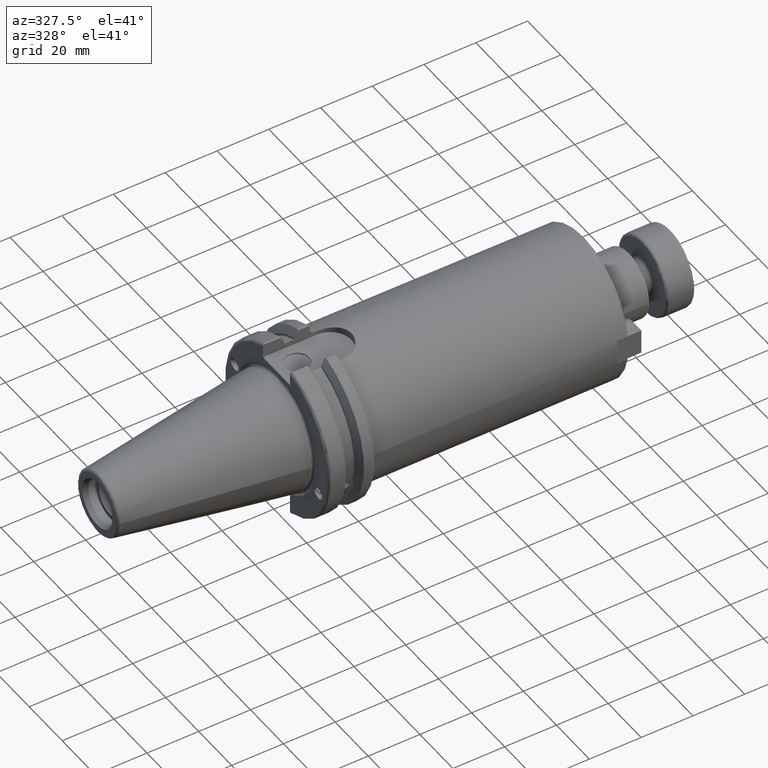
[diagram: clean part render]
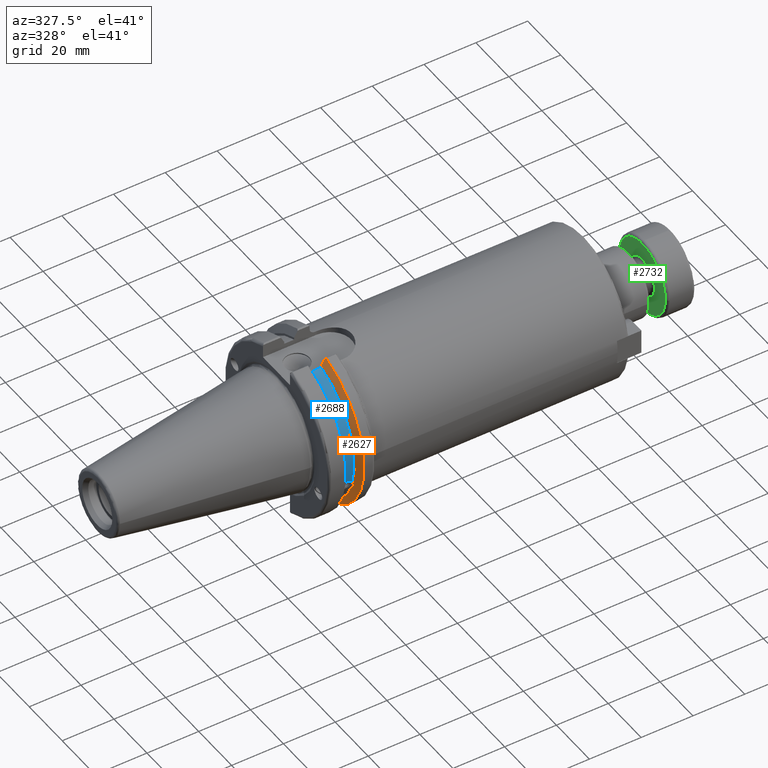
[diagram: same view with three faces highlighted in distinct colors, each labeled with its STEP entity id]
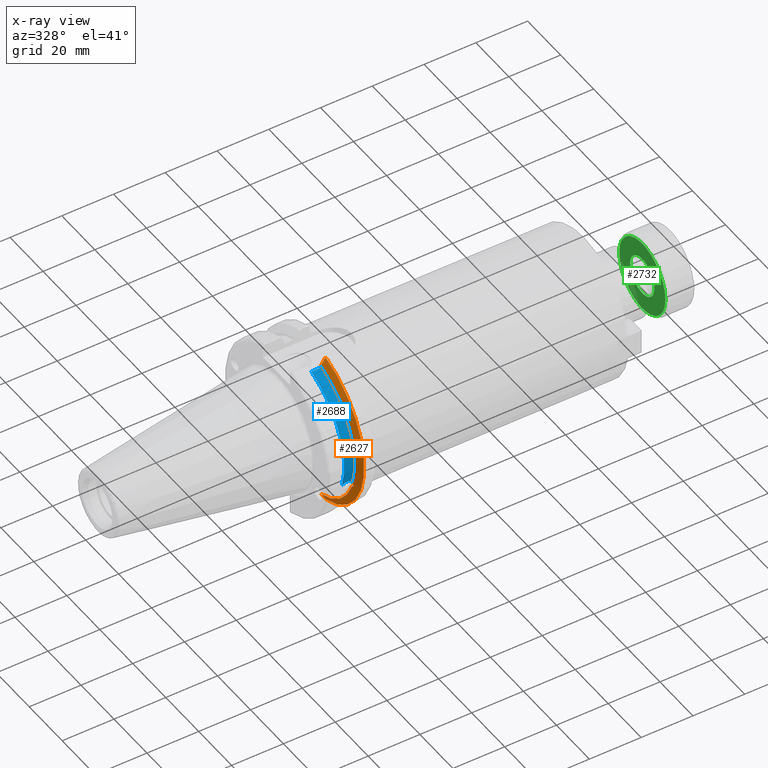
[diagram: x-ray of the same camera — body ghosted, the three highlighted faces saturated]
A machine part, auxiliary view with three faces highlighted in distinct colors.
The next image is the same camera in x-ray (body ghosted, the three faces saturated) — at least one of them is partly hidden behind the body in this view.
Their STEP definitions:

[orange] entity #2627 — the highlighted conical surface has half-angle 60 deg.
#53=(
BOUNDED_CURVE()
B_SPLINE_CURVE(2,(#4510,#4511,#4512),.UNSPECIFIED.,.F.,.F.)
B_SPLINE_CURVE_WITH_KNOTS((3,3),(0.,0.276549142795512),.UNSPECIFIED.)
CURVE()
GEOMETRIC_REPRESENTATION_ITEM()
RATIONAL_B_SPLINE_CURVE((1.,1.00095203904184,1.00031614445102))
REPRESENTATION_ITEM('')
);
#54=(
BOUNDED_CURVE()
B_SPLINE_CURVE(2,(#4514,#4515,#4516),.UNSPECIFIED.,.F.,.F.)
B_SPLINE_CURVE_WITH_KNOTS((3,3),(0.,0.0639048713675663),.UNSPECIFIED.)
CURVE()
GEOMETRIC_REPRESENTATION_ITEM()
RATIONAL_B_SPLINE_CURVE((1.,1.00028444218286,1.00047644010578))
REPRESENTATION_ITEM('')
);
#55=(
BOUNDED_CURVE()
B_SPLINE_CURVE(2,(#4520,#4521,#4522),.UNSPECIFIED.,.F.,.F.)
B_SPLINE_CURVE_WITH_KNOTS((3,3),(0.329353533631206,0.393258405001023),
 .UNSPECIFIED.)
CURVE()
GEOMETRIC_REPRESENTATION_ITEM()
RATIONAL_B_SPLINE_CURVE((1.00047644010579,1.00028444218287,1.))
REPRESENTATION_ITEM('')
);
#56=(
BOUNDED_CURVE()
B_SPLINE_CURVE(2,(#4524,#4525,#4526),.UNSPECIFIED.,.F.,.F.)
B_SPLINE_CURVE_WITH_KNOTS((3,3),(0.0550586467393779,0.331607789535852),
 .UNSPECIFIED.)
CURVE()
GEOMETRIC_REPRESENTATION_ITEM()
RATIONAL_B_SPLINE_CURVE((1.00031614444922,1.00095203903643,1.))
REPRESENTATION_ITEM('')
);
#120=CONICAL_SURFACE('',#2945,30.3546886482472,1.0471975511966);
#277=FACE_OUTER_BOUND('',#442,.T.);
#442=EDGE_LOOP('',(#1977,#1978,#1979,#1980,#1981,#1982,#1983,#1984,#1985));
#618=CIRCLE('',#2946,28.9593772964944);
#619=CIRCLE('',#2947,31.75);
#620=CIRCLE('',#2948,28.9593772964944);
#1061=B_SPLINE_CURVE_WITH_KNOTS('',3,(#4418,#4419,#4420,#4421,#4422,#4423,
#4424,#4425),.UNSPECIFIED.,.F.,.F.,(4,2,2,4),(0.451995700189025,0.464547828547663,
0.504528771685168,0.544509714822673),.UNSPECIFIED.);
#1065=B_SPLINE_CURVE_WITH_KNOTS('',3,(#4480,#4481,#4482,#4483,#4484,#4485,
#4486,#4487),.UNSPECIFIED.,.F.,.F.,(4,2,2,4),(0.544509714822673,0.584490657960178,
0.624471601097683,0.637023729456322),.UNSPECIFIED.);
#1168=VERTEX_POINT('',#4415);
#1169=VERTEX_POINT('',#4417);
#1176=VERTEX_POINT('',#4478);
#1182=VERTEX_POINT('',#4507);
#1183=VERTEX_POINT('',#4509);
#1184=VERTEX_POINT('',#4513);
#1185=VERTEX_POINT('',#4517);
#1186=VERTEX_POINT('',#4519);
#1187=VERTEX_POINT('',#4523);
#1465=EDGE_CURVE('',#1169,#1168,#1061,.T.);
#1473=EDGE_CURVE('',#1168,#1176,#1065,.T.);
#1482=EDGE_CURVE('',#1176,#1182,#618,.T.);
#1483=EDGE_CURVE('',#1182,#1183,#53,.T.);
#1484=EDGE_CURVE('',#1184,#1183,#54,.T.);
#1485=EDGE_CURVE('',#1185,#1184,#619,.T.);
#1486=EDGE_CURVE('',#1186,#1185,#55,.T.);
#1487=EDGE_CURVE('',#1186,#1187,#56,.T.);
#1488=EDGE_CURVE('',#1187,#1169,#620,.T.);
#1977=ORIENTED_EDGE('',*,*,#1465,.T.);
#1978=ORIENTED_EDGE('',*,*,#1473,.T.);
#1979=ORIENTED_EDGE('',*,*,#1482,.T.);
#1980=ORIENTED_EDGE('',*,*,#1483,.T.);
#1981=ORIENTED_EDGE('',*,*,#1484,.F.);
#1982=ORIENTED_EDGE('',*,*,#1485,.F.);
#1983=ORIENTED_EDGE('',*,*,#1486,.F.);
#1984=ORIENTED_EDGE('',*,*,#1487,.T.);
#1985=ORIENTED_EDGE('',*,*,#1488,.T.);
#2627=ADVANCED_FACE('',(#277),#120,.T.);
#2945=AXIS2_PLACEMENT_3D('',#4506,#3431,#3432);
#2946=AXIS2_PLACEMENT_3D('',#4508,#3433,#3434);
#2947=AXIS2_PLACEMENT_3D('',#4518,#3435,#3436);
#2948=AXIS2_PLACEMENT_3D('',#4527,#3437,#3438);
#3431=DIRECTION('center_axis',(1.,0.,0.));
#3432=DIRECTION('ref_axis',(0.,-1.,-1.22464679914735E-16));
#3433=DIRECTION('center_axis',(1.,0.,0.));
#3434=DIRECTION('ref_axis',(0.,0.,-1.));
#3435=DIRECTION('center_axis',(1.,0.,0.));
#3436=DIRECTION('ref_axis',(0.,0.,-1.));
#3437=DIRECTION('center_axis',(1.,0.,0.));
#3438=DIRECTION('ref_axis',(0.,0.,-1.));
#4415=CARTESIAN_POINT('',(13.2341,-27.51401829017,-10.0142836826778));
#4417=CARTESIAN_POINT('',(13.0491,-27.4956274489925,-9.09043478536246));
#4418=CARTESIAN_POINT('Ctrl Pts',(13.0491,-27.4956274489925,-9.09043478536246));
#4419=CARTESIAN_POINT('Ctrl Pts',(13.0632204071996,-27.5087667900418,-9.12860597076218));
#4420=CARTESIAN_POINT('Ctrl Pts',(13.0766929817857,-27.5206055003513,-9.16696618806878));
#4421=CARTESIAN_POINT('Ctrl Pts',(13.130081441159,-27.5642934663232,-9.32791534028656));
#4422=CARTESIAN_POINT('Ctrl Pts',(13.1682197084175,-27.5867382255984,-9.46717946402648));
#4423=CARTESIAN_POINT('Ctrl Pts',(13.2204106446058,-27.5847569104122,-9.74771639360671));
#4424=CARTESIAN_POINT('Ctrl Pts',(13.2341,-27.559599249844,-9.8890510252165));
#4425=CARTESIAN_POINT('Ctrl Pts',(13.2341,-27.51401829017,-10.0142836826778));
#4478=CARTESIAN_POINT('',(13.0491,-26.9060914640648,-10.7101715919071));
#4480=CARTESIAN_POINT('Ctrl Pts',(13.2341,-27.51401829017,-10.0142836826778));
#4481=CARTESIAN_POINT('Ctrl Pts',(13.2341,-27.4684373304961,-10.139516340139));
#4482=CARTESIAN_POINT('Ctrl Pts',(13.2204106446058,-27.3968610665578,-10.2639559818059));
#4483=CARTESIAN_POINT('Ctrl Pts',(13.1682197084175,-27.2180531796526,-10.4801333026531));
#4484=CARTESIAN_POINT('Ctrl Pts',(13.130081441159,-27.1113422433189,-10.5723885976054));
#4485=CARTESIAN_POINT('Ctrl Pts',(13.0766929817857,-26.9744191989197,-10.6676007180673));
#4486=CARTESIAN_POINT('Ctrl Pts',(13.0632204071996,-26.9406927482839,-10.6893765730703));
#4487=CARTESIAN_POINT('Ctrl Pts',(13.0491,-26.9060914640648,-10.7101715919071));
#4506=CARTESIAN_POINT('Origin',(13.8546833845378,0.,0.));
#4507=CARTESIAN_POINT('',(13.0491,-8.19,-27.7771386827498));
#4508=CARTESIAN_POINT('Origin',(13.0491,0.,0.));
#4509=CARTESIAN_POINT('',(14.3815146964874,-8.19,-30.1755016258903));
#4510=CARTESIAN_POINT('Ctrl Pts',(13.0491,-8.19,-27.7771386827498));
#4511=CARTESIAN_POINT('Ctrl Pts',(13.68773643849,-8.19,-28.9303689539956));
#4512=CARTESIAN_POINT('Ctrl Pts',(14.3815146964874,-8.19,-30.1755016258903));
#4513=CARTESIAN_POINT('',(14.6602667690756,-8.67204822802686,-30.5427254764662));
#4514=CARTESIAN_POINT('Ctrl Pts',(14.6602667690756,-8.67204822802687,-30.5427254764662));
#4515=CARTESIAN_POINT('Ctrl Pts',(14.5192085187837,-8.42917748262644,-30.357706789263));
#4516=CARTESIAN_POINT('Ctrl Pts',(14.3815146964874,-8.19,-30.1755016258903));
#4517=CARTESIAN_POINT('',(14.6602667690756,-8.67204822802685,30.5427254764662));
#4518=CARTESIAN_POINT('Origin',(14.6602667690756,0.,0.));
#4519=CARTESIAN_POINT('',(14.3815146964874,-8.19,30.1755016258903));
#4520=CARTESIAN_POINT('Ctrl Pts',(14.3815146964874,-8.19,30.1755016258903));
#4521=CARTESIAN_POINT('Ctrl Pts',(14.5192085187884,-8.42917748263465,30.3577067892692));
#4522=CARTESIAN_POINT('Ctrl Pts',(14.6602667690756,-8.67204822802686,30.5427254764662));
#4523=CARTESIAN_POINT('',(13.0491,-8.19,27.7771386827498));
#4524=CARTESIAN_POINT('Ctrl Pts',(14.3815146964874,-8.19,30.1755016258903));
#4525=CARTESIAN_POINT('Ctrl Pts',(13.687736438474,-8.19,28.9303689539668));
#4526=CARTESIAN_POINT('Ctrl Pts',(13.0491,-8.19,27.7771386827498));
#4527=CARTESIAN_POINT('Origin',(13.0491,0.,0.));

[blue] entity #2688 — the highlighted cylindrical surface (partial cylindrical patch) has radius 28.15 mm, axis along (1, 0, 0).
#338=FACE_OUTER_BOUND('',#511,.T.);
#511=EDGE_LOOP('',(#2320,#2321,#2322,#2323));
#667=CIRCLE('',#3064,28.15);
#668=CIRCLE('',#3066,28.15);
#789=LINE('',#4830,#957);
#957=VECTOR('',#3568,10.);
#1062=B_SPLINE_CURVE_WITH_KNOTS('',3,(#4429,#4430,#4431,#4432,#4433,#4434,
#4435,#4436,#4437,#4438,#4439,#4440,#4441,#4442),.UNSPECIFIED.,.F.,.F.,
(4,2,2,2,2,2,4),(0.401639126382404,0.474814416953736,0.553950208498303,
0.63308600004287,0.712221791587437,0.791357583132004,0.864532873703336),
 .UNSPECIFIED.);
#1170=VERTEX_POINT('',#4426);
#1171=VERTEX_POINT('',#4428);
#1243=VERTEX_POINT('',#4827);
#1244=VERTEX_POINT('',#4829);
#1467=EDGE_CURVE('',#1171,#1170,#1062,.T.);
#1567=EDGE_CURVE('',#1244,#1243,#789,.T.);
#1639=EDGE_CURVE('',#1243,#1171,#667,.T.);
#1640=EDGE_CURVE('',#1244,#1170,#668,.T.);
#2320=ORIENTED_EDGE('',*,*,#1467,.T.);
#2321=ORIENTED_EDGE('',*,*,#1640,.F.);
#2322=ORIENTED_EDGE('',*,*,#1567,.T.);
#2323=ORIENTED_EDGE('',*,*,#1639,.T.);
#2573=CYLINDRICAL_SURFACE('',#3065,28.15);
#2688=ADVANCED_FACE('',(#338),#2573,.T.);
#3064=AXIS2_PLACEMENT_3D('',#5027,#3728,#3729);
#3065=AXIS2_PLACEMENT_3D('',#5028,#3730,#3731);
#3066=AXIS2_PLACEMENT_3D('',#5029,#3732,#3733);
#3568=DIRECTION('',(-1.,0.,0.));
#3728=DIRECTION('center_axis',(1.,0.,0.));
#3729=DIRECTION('ref_axis',(0.,0.,-1.));
#3730=DIRECTION('center_axis',(1.,0.,0.));
#3731=DIRECTION('ref_axis',(0.,-0.887654187951484,0.46051063246378));
#3732=DIRECTION('center_axis',(1.,0.,0.));
#3733=DIRECTION('ref_axis',(0.,0.,-1.));
#4426=CARTESIAN_POINT('',(13.0491,-26.734714844398,-8.81348524641211));
#4428=CARTESIAN_POINT('',(9.2191,-26.734714844398,-8.81348524641211));
#4429=CARTESIAN_POINT('Ctrl Pts',(9.2191,-26.734714844398,-8.81348524641211));
#4430=CARTESIAN_POINT('Ctrl Pts',(9.32533057097183,-26.8086519721597,-8.58920529678291));
#4431=CARTESIAN_POINT('Ctrl Pts',(9.4768201377051,-26.8729987454904,-8.38416529997369));
#4432=CARTESIAN_POINT('Ctrl Pts',(9.83557062657411,-26.9778908791383,-8.04056861831091));
#4433=CARTESIAN_POINT('Ctrl Pts',(10.0716450112988,-27.0233016799732,-7.88512567185902));
#4434=CARTESIAN_POINT('Ctrl Pts',(10.5890125426388,-27.0826966800569,-7.6786444840004));
#4435=CARTESIAN_POINT('Ctrl Pts',(10.8703140281848,-27.0968804077294,-7.62768458768513));
#4436=CARTESIAN_POINT('Ctrl Pts',(11.3978859718152,-27.0968804077294,-7.62768458768513));
#4437=CARTESIAN_POINT('Ctrl Pts',(11.6791874573612,-27.0826966800569,-7.6786444840004));
#4438=CARTESIAN_POINT('Ctrl Pts',(12.1965549887012,-27.0233016799732,-7.88512567185902));
#4439=CARTESIAN_POINT('Ctrl Pts',(12.4326293734259,-26.9778908791383,-8.04056861831091));
#4440=CARTESIAN_POINT('Ctrl Pts',(12.7913798622949,-26.8729987454904,-8.38416529997369));
#4441=CARTESIAN_POINT('Ctrl Pts',(12.9428694290282,-26.8086519721597,-8.58920529678291));
#4442=CARTESIAN_POINT('Ctrl Pts',(13.0491,-26.734714844398,-8.81348524641211));
#4827=CARTESIAN_POINT('',(9.2191,-8.19,26.932255754021));
#4829=CARTESIAN_POINT('',(13.0491,-8.19,26.932255754021));
#4830=CARTESIAN_POINT('',(11.1341,-8.19,26.932255754021));
#5027=CARTESIAN_POINT('Origin',(9.2191,0.,0.));
#5028=CARTESIAN_POINT('Origin',(11.1341,0.,0.));
#5029=CARTESIAN_POINT('Origin',(13.0491,0.,0.));

[green] entity #2732 — the highlighted planar face has unit normal (-1, -0, 0).
#158=FACE_BOUND('',#561,.T.);
#230=PLANE('',#3146);
#382=FACE_OUTER_BOUND('',#560,.T.);
#560=EDGE_LOOP('',(#2513));
#561=EDGE_LOOP('',(#2514));
#700=CIRCLE('',#3144,7.35);
#702=CIRCLE('',#3147,14.);
#1343=VERTEX_POINT('',#5246);
#1344=VERTEX_POINT('',#5250);
#1735=EDGE_CURVE('',#1343,#1343,#700,.T.);
#1737=EDGE_CURVE('',#1344,#1344,#702,.T.);
#2513=ORIENTED_EDGE('',*,*,#1737,.F.);
#2514=ORIENTED_EDGE('',*,*,#1735,.F.);
#2732=ADVANCED_FACE('',(#382,#158),#230,.T.);
#3144=AXIS2_PLACEMENT_3D('',#5247,#3944,#3945);
#3146=AXIS2_PLACEMENT_3D('',#5249,#3948,#3949);
#3147=AXIS2_PLACEMENT_3D('',#5251,#3950,#3951);
#3944=DIRECTION('center_axis',(1.,0.,0.));
#3945=DIRECTION('ref_axis',(0.,-1.,1.83697019872103E-16));
#3948=DIRECTION('center_axis',(1.,0.,0.));
#3949=DIRECTION('ref_axis',(0.,0.,-1.));
#3950=DIRECTION('center_axis',(-1.,0.,0.));
#3951=DIRECTION('ref_axis',(0.,-1.,1.83697019872103E-16));
#5246=CARTESIAN_POINT('',(11.,-9.00115397373305E-16,7.35));
#5247=CARTESIAN_POINT('Origin',(11.,0.,0.));
#5249=CARTESIAN_POINT('Origin',(11.,6.35,0.));
#5250=CARTESIAN_POINT('',(11.,-1.71450551880629E-15,14.));
#5251=CARTESIAN_POINT('Origin',(11.,0.,0.));